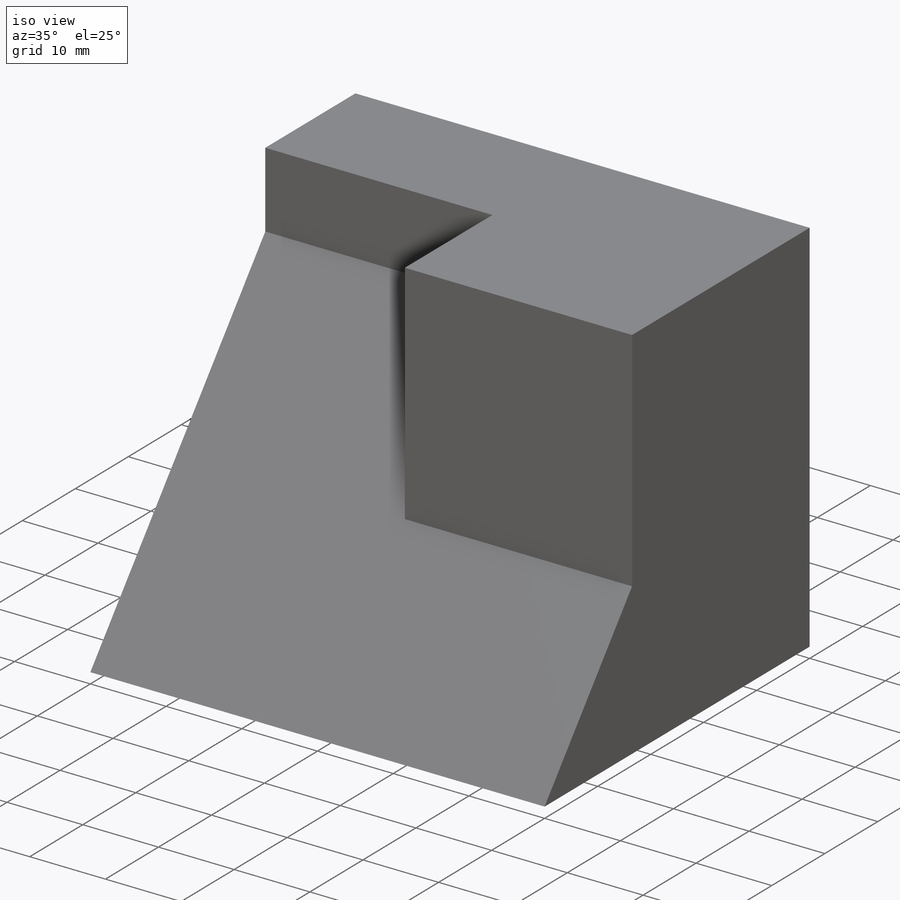
[diagram: iso view]
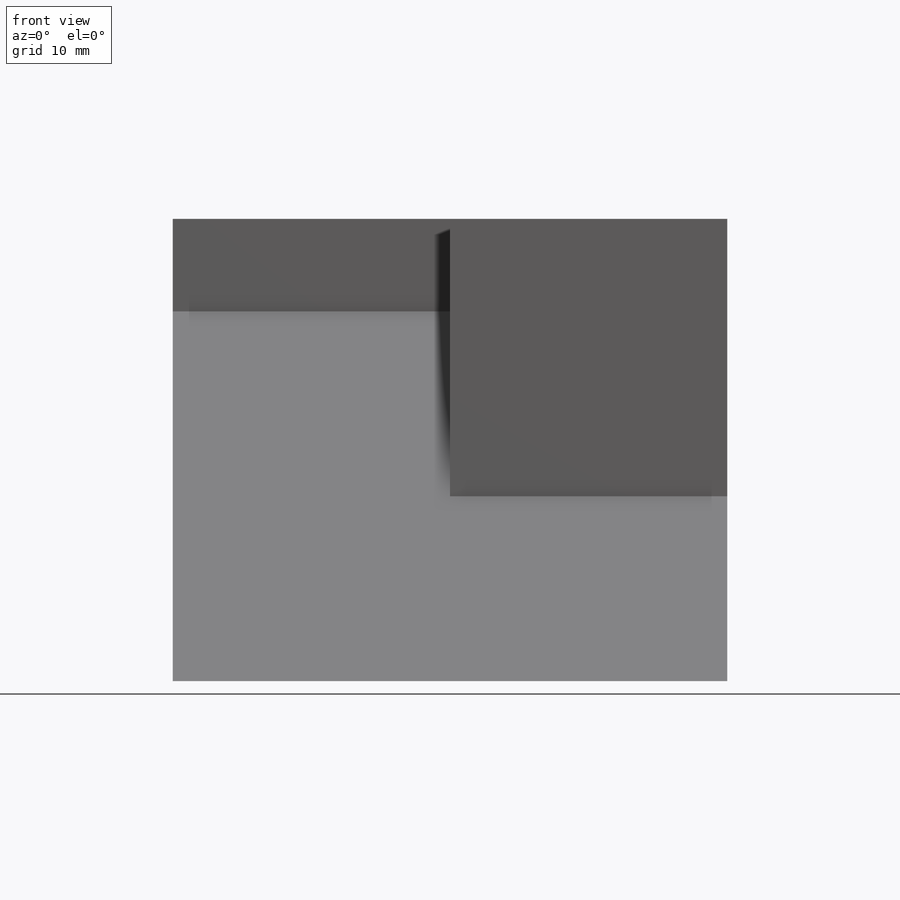
[diagram: front view]
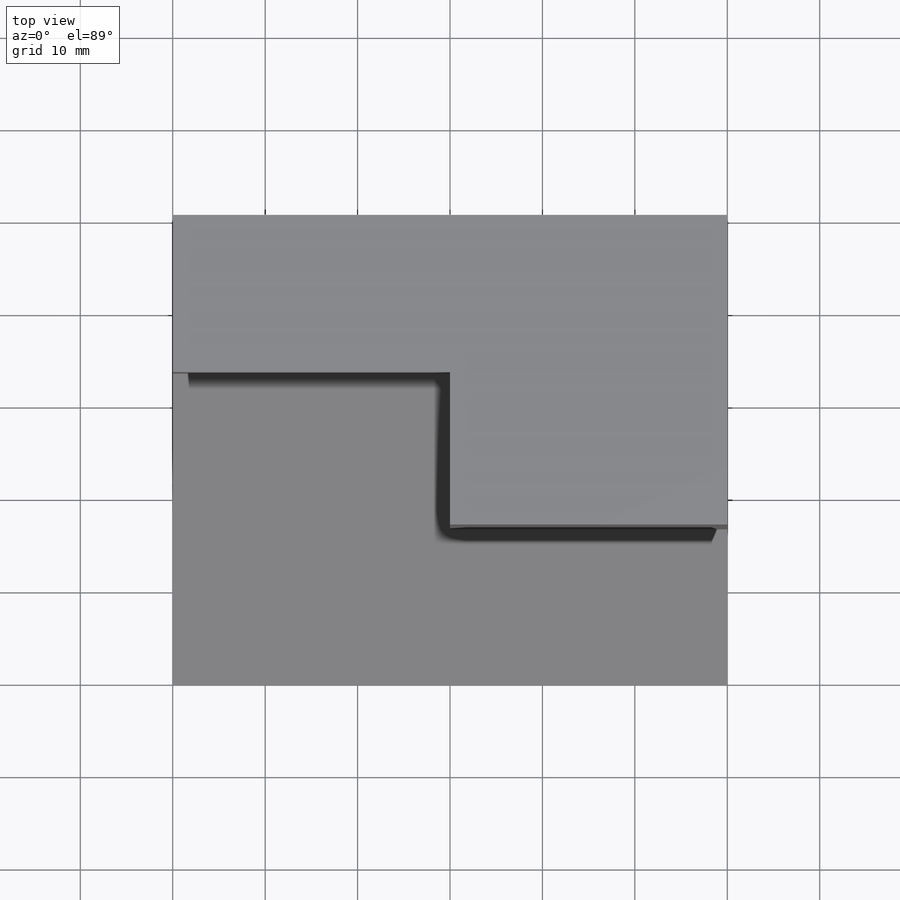
[diagram: top view]
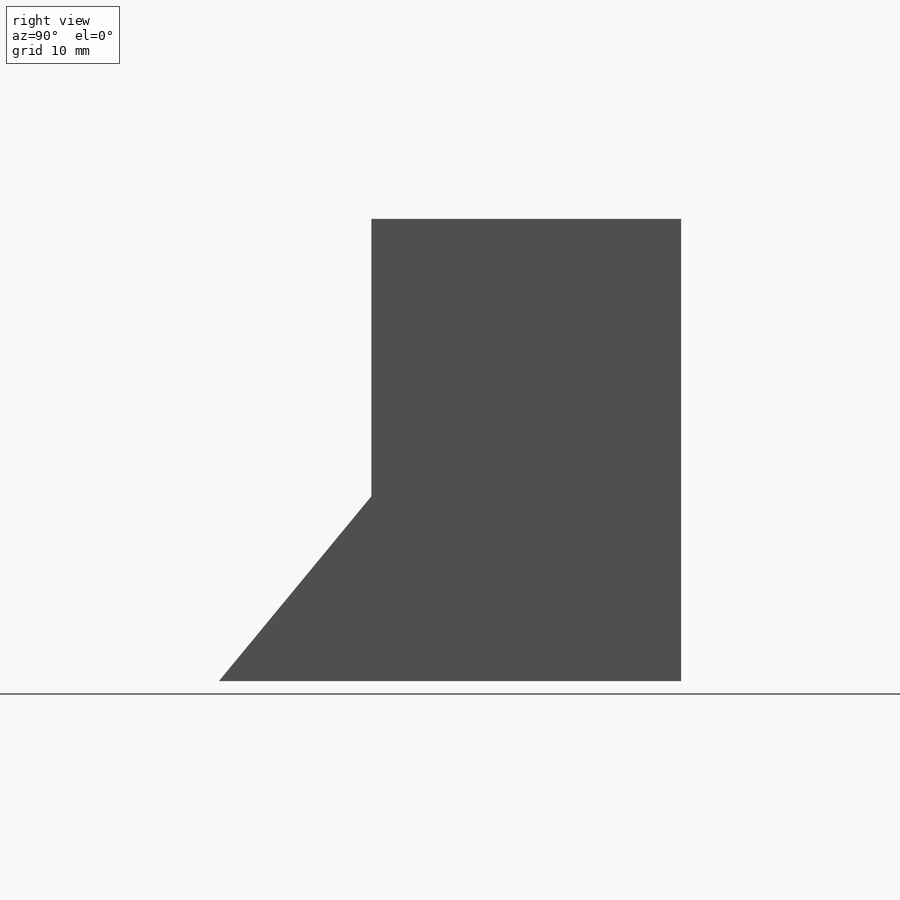
[diagram: right view]
SOLIDWORKS PART (.sldprt)
format: sldprt  version: not decoded by parser v0  size: 198,144 bytes
history: native  units: mm
features: sketch x9, cut_extrude x5, extrude x4, material x1 (+13 scaffold rows collapsed)
feature tree (32):
  scaffold x13  (default folders/planes/origin — collapsed)
  material  "Material <not specified>"
  sketch  "Sketch1"  dims[c1.D1=~61.898046mm c1.D2=~84.349202mm c2.D1=60.0mm c2.D2=50.0mm]
  extrude  "Boss-Extrude1"  Depth=50mm
  sketch  "Sketch2"  dims[c1.D1=~19.25205mm c1.D2=~24.804831mm c2.D1=30.0mm c2.D2=10.0mm]
  cut_extrude  "Cut-Extrude1"  Depth=40mm
  sketch  "Sketch3"  dims[c1.D1=~31.877722mm c1.D2=~29.868577mm c2.D1=30.0mm c2.D2=30.0mm]
  cut_extrude  "Cut-Extrude2"  Depth=30mm
  sketch  "Sketch4"  dims[c1.D1=~10.995752mm c1.D2=~29.38322mm c2.D1=30.0mm c2.D2=10.0mm]
  extrude  "Boss-Extrude2"  Depth=7mm
  sketch  "Sketch5"  dims[D1=30.0mm D2=30.0mm]
  extrude  "Boss-Extrude3"  Depth=12mm
  sketch  "Sketch10"  dims[D1=33.0mm]
  cut_extrude  "Cut-Extrude6"  Depth=10mm
  sketch  "Sketch11"  dims[D1=~51.855569mm]
  cut_extrude  "Cut-Extrude7"  Depth=20mm
  sketch  "Sketch12"  dims[D1=16.5mm]
  cut_extrude  "Cut-Extrude8"  Depth=52mm
  sketch  "Sketch13"  dims[D1=30.0mm D2=30.0mm]
  extrude  "Boss-Extrude4"  Depth=1.5mm
decode coverage: 18 of 18 modeling features carry decoded parameters
note: ~ marks probable driven/reference dimensions
note: suppression state not decoded; provenance and decode notes live in map.json
